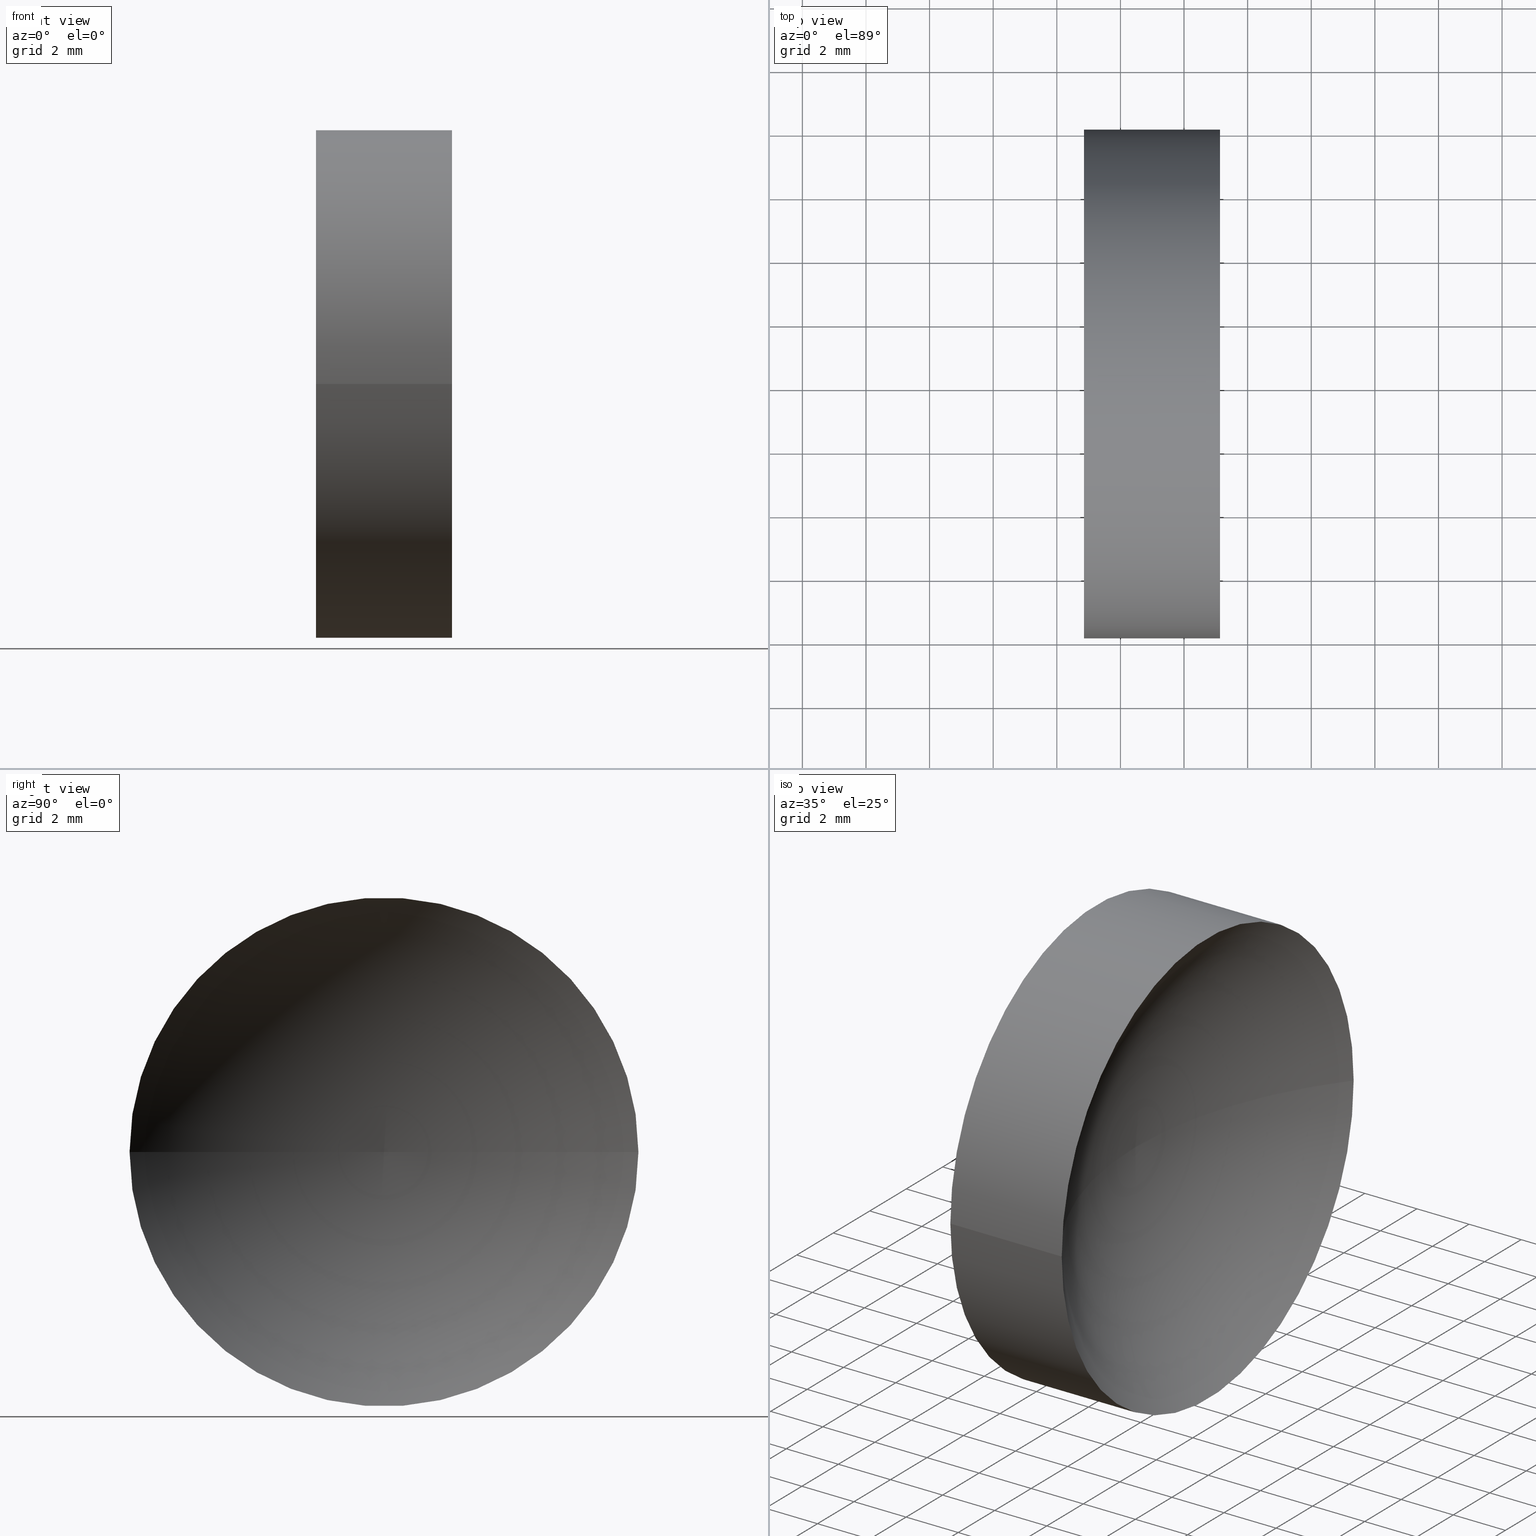
[diagram: canonical four-view strip — front | top / right | iso, engineering-drawing reading convention]
A machine part, canonical four-view strip (front | top / right | iso — engineering-drawing reading convention). The complete STEP part file that produces these views, byte-faithful:
ISO-10303-21;
HEADER;
FILE_DESCRIPTION (( 'STEP AP214' ),
    '1' );
FILE_NAME ('120140.STEP',
    '2019-06-19T08:49:53',
    ( '' ),
    ( '' ),
    'SwSTEP 2.0',
    'SolidWorks 2016',
    '' );
FILE_SCHEMA (( 'AUTOMOTIVE_DESIGN' ));
ENDSEC;

DATA;
#1 = VERTEX_POINT ( 'NONE', #114 ) ;
#2 = PRESENTATION_STYLE_ASSIGNMENT (( #96 ) ) ;
#3 = AXIS2_PLACEMENT_3D ( 'NONE', #123, #49, #75 ) ;
#4 = FILL_AREA_STYLE_COLOUR ( '', #58 ) ;
#5 = DIRECTION ( 'NONE',  ( 0.0000000000000000000, -1.000000000000000000, 0.0000000000000000000 ) ) ;
#6 = ORIENTED_EDGE ( 'NONE', *, *, #50, .T. ) ;
#7 = EDGE_LOOP ( 'NONE', ( #63, #37 ) ) ;
#8 = DIRECTION ( 'NONE',  ( 0.0000000000000000000, -1.000000000000000000, 0.0000000000000000000 ) ) ;
#9 = DIRECTION ( 'NONE',  ( 1.000000000000000000, -4.058245434298766700E-016, 0.0000000000000000000 ) ) ;
#10 = PRESENTATION_LAYER_ASSIGNMENT (  '', '', ( #159 ) ) ;
#11 = ORIENTED_EDGE ( 'NONE', *, *, #42, .T. ) ;
#12 = VECTOR ( 'NONE', #161, 1000.000000000000000 ) ;
#13 = SURFACE_SIDE_STYLE ('',( #131 ) ) ;
#14 = VERTEX_POINT ( 'NONE', #141 ) ;
#15 = SURFACE_STYLE_USAGE ( .BOTH. , #13 ) ;
#16 =( LENGTH_UNIT ( ) NAMED_UNIT ( * ) SI_UNIT ( .MILLI., .METRE. ) );
#17 = DIRECTION ( 'NONE',  ( 0.0000000000000000000, 0.0000000000000000000, 1.000000000000000000 ) ) ;
#18 = MECHANICAL_DESIGN_GEOMETRIC_PRESENTATION_REPRESENTATION (  '', ( #159 ), #84 ) ;
#19 = COLOUR_RGB ( '',1.000000000000000000, 1.000000000000000000, 1.000000000000000000 ) ;
#20 = EDGE_CURVE ( 'NONE', #32, #73, #47, .T. ) ;
#21 = VERTEX_POINT ( 'NONE', #52 ) ;
#22 = LINE ( 'NONE', #102, #64 ) ;
#23 = EDGE_CURVE ( 'NONE', #1, #32, #98, .T. ) ;
#24 = EDGE_LOOP ( 'NONE', ( #139, #11, #6, #143 ) ) ;
#25 = UNCERTAINTY_MEASURE_WITH_UNIT (LENGTH_MEASURE( 1.000000000000000100E-005 ), #157, 'distance_accuracy_value', 'NONE');
#26 = AXIS2_PLACEMENT_3D ( 'NONE', #72, #17, #100 ) ;
#27 = ADVANCED_FACE ( 'NONE', ( #28 ), #92, .T. ) ;
#28 = FACE_OUTER_BOUND ( 'NONE', #24, .T. ) ;
#29 =( NAMED_UNIT ( * ) PLANE_ANGLE_UNIT ( ) SI_UNIT ( $, .RADIAN. ) );
#30 = CIRCLE ( 'NONE', #166, 8.000000000000000000 ) ;
#31 =( NAMED_UNIT ( * ) SI_UNIT ( $, .STERADIAN. ) SOLID_ANGLE_UNIT ( ) );
#32 = VERTEX_POINT ( 'NONE', #43 ) ;
#33 = EDGE_CURVE ( 'NONE', #1, #73, #35, .T. ) ;
#34 = PRODUCT ( '120140', '120140', '', ( #165 ) ) ;
#35 = CIRCLE ( 'NONE', #119, 12.91000000000000500 ) ;
#36 = MANIFOLD_SOLID_BREP ( '��ת1', #158 ) ;
#37 = ORIENTED_EDGE ( 'NONE', *, *, #79, .T. ) ;
#38 = DIRECTION ( 'NONE',  ( 4.058245434298766700E-016, 1.000000000000000000, 0.0000000000000000000 ) ) ;
#39 = PRODUCT_DEFINITION ( 'δ֪', '', #106, #67 ) ;
#40 = ORIENTED_EDGE ( 'NONE', *, *, #33, .F. ) ;
#41 = CIRCLE ( 'NONE', #136, 8.000000000000000000 ) ;
#42 = EDGE_CURVE ( 'NONE', #32, #1, #45, .T. ) ;
#43 = CARTESIAN_POINT ( 'NONE',  ( 49.13169841185359100, 34.06225218280607700, 9.797174393178821700E-016 ) ) ;
#44 = FILL_AREA_STYLE_COLOUR ( '', #19 ) ;
#45 = CIRCLE ( 'NONE', #125, 8.000000000000003600 ) ;
#46 = ADVANCED_FACE ( 'NONE', ( #128 ), #115, .F. ) ;
#47 = CIRCLE ( 'NONE', #3, 12.91000000000000200 ) ;
#48 = ADVANCED_BREP_SHAPE_REPRESENTATION ( '120140', ( #36, #26 ), #153 ) ;
#49 = DIRECTION ( 'NONE',  ( -4.969917281268344600E-032, -1.224646799147353200E-016, 1.000000000000000000 ) ) ;
#50 = EDGE_CURVE ( 'NONE', #1, #21, #22, .T. ) ;
#51 = DIRECTION ( 'NONE',  ( -4.058245434298766700E-016, -1.000000000000000000, 0.0000000000000000000 ) ) ;
#52 = CARTESIAN_POINT ( 'NONE',  ( 44.85442262622448300, 18.06225218280608400, 0.0000000000000000000 ) ) ;
#53 = AXIS2_PLACEMENT_3D ( 'NONE', #163, #9, #38 ) ;
#54 =( GEOMETRIC_REPRESENTATION_CONTEXT ( 3 ) GLOBAL_UNCERTAINTY_ASSIGNED_CONTEXT ( ( #57 ) ) GLOBAL_UNIT_ASSIGNED_CONTEXT ( ( #107, #29, #120 ) ) REPRESENTATION_CONTEXT ( 'NONE', 'WORKASPACE' ) );
#55 = CARTESIAN_POINT ( 'NONE',  ( 59.26444251883568600, 26.06197698197384900, 0.0000000000000000000 ) ) ;
#56 = PRESENTATION_LAYER_ASSIGNMENT (  '', '', ( #99 ) ) ;
#57 = UNCERTAINTY_MEASURE_WITH_UNIT (LENGTH_MEASURE( 1.000000000000000100E-005 ), #107, 'distance_accuracy_value', 'NONE');
#58 = COLOUR_RGB ( '',1.000000000000000000, 1.000000000000000000, 1.000000000000000000 ) ;
#59 = AXIS2_PLACEMENT_3D ( 'NONE', #140, #74, #85 ) ;
#60 = ORIENTED_EDGE ( 'NONE', *, *, #20, .F. ) ;
#61 = DIRECTION ( 'NONE',  ( -1.000000000000000000, 4.058245434298766700E-016, -0.0000000000000000000 ) ) ;
#62 = PRESENTATION_STYLE_ASSIGNMENT (( #15 ) ) ;
#63 = ORIENTED_EDGE ( 'NONE', *, *, #91, .T. ) ;
#64 = VECTOR ( 'NONE', #61, 1000.000000000000000 ) ;
#65 = DIRECTION ( 'NONE',  ( 0.0000000000000000000, -0.0000000000000000000, -1.000000000000000000 ) ) ;
#66 = SHAPE_DEFINITION_REPRESENTATION ( #90, #48 ) ;
#67 = PRODUCT_DEFINITION_CONTEXT ( 'detailed design', #164, 'design' ) ;
#68 = DIRECTION ( 'NONE',  ( -1.000000000000000000, 4.058245434298766700E-016, -0.0000000000000000000 ) ) ;
#69 = ORIENTED_EDGE ( 'NONE', *, *, #42, .F. ) ;
#70 =( NAMED_UNIT ( * ) SI_UNIT ( $, .STERADIAN. ) SOLID_ANGLE_UNIT ( ) );
#71 = AXIS2_PLACEMENT_3D ( 'NONE', #82, #68, #133 ) ;
#72 = CARTESIAN_POINT ( 'NONE',  ( 0.0000000000000000000, 0.0000000000000000000, 0.0000000000000000000 ) ) ;
#73 = VERTEX_POINT ( 'NONE', #150 ) ;
#74 = DIRECTION ( 'NONE',  ( -1.000000000000000000, 4.058245434298766700E-016, -0.0000000000000000000 ) ) ;
#75 = DIRECTION ( 'NONE',  ( 0.0000000000000000000, -1.000000000000000000, -1.224646799147353200E-016 ) ) ;
#76 = CARTESIAN_POINT ( 'NONE',  ( 59.26444251883568600, 26.06225218280607700, 0.0000000000000000000 ) ) ;
#77 = MECHANICAL_DESIGN_GEOMETRIC_PRESENTATION_REPRESENTATION (  '', ( #99 ), #54 ) ;
#78 = DIRECTION ( 'NONE',  ( -1.000000000000000000, 4.058245434298766700E-016, -0.0000000000000000000 ) ) ;
#79 = EDGE_CURVE ( 'NONE', #14, #21, #41, .T. ) ;
#80 = CARTESIAN_POINT ( 'NONE',  ( 59.26444251883568600, 26.06225218280607700, 0.0000000000000000000 ) ) ;
#81 = EDGE_LOOP ( 'NONE', ( #60, #147, #105 ) ) ;
#82 = CARTESIAN_POINT ( 'NONE',  ( 49.13169841185359100, 26.06225218280608000, 0.0000000000000000000 ) ) ;
#83 = ADVANCED_FACE ( 'NONE', ( #116 ), #138, .F. ) ;
#84 =( GEOMETRIC_REPRESENTATION_CONTEXT ( 3 ) GLOBAL_UNCERTAINTY_ASSIGNED_CONTEXT ( ( #162 ) ) GLOBAL_UNIT_ASSIGNED_CONTEXT ( ( #16, #137, #70 ) ) REPRESENTATION_CONTEXT ( 'NONE', 'WORKASPACE' ) );
#85 = DIRECTION ( 'NONE',  ( 0.0000000000000000000, -1.000000000000000000, 0.0000000000000000000 ) ) ;
#86 = CARTESIAN_POINT ( 'NONE',  ( 44.85442262622448300, 26.06225218280608400, 0.0000000000000000000 ) ) ;
#87 = DIRECTION ( 'NONE',  ( 0.0000000000000000000, -1.000000000000000000, 0.0000000000000000000 ) ) ;
#88 = TOROIDAL_SURFACE ( 'NONE', #144, 0.0002752008322264752000, 12.91000000000000200 ) ;
#89 = CARTESIAN_POINT ( 'NONE',  ( 49.13169841185359100, 26.06225218280608000, 0.0000000000000000000 ) ) ;
#90 = PRODUCT_DEFINITION_SHAPE ( 'NONE', 'NONE',  #39 ) ;
#91 = EDGE_CURVE ( 'NONE', #21, #14, #30, .T. ) ;
#92 = CYLINDRICAL_SURFACE ( 'NONE', #155, 8.000000000000000000 ) ;
#93 = DIRECTION ( 'NONE',  ( -1.000000000000000000, 4.058245434298766700E-016, -0.0000000000000000000 ) ) ;
#94 =( NAMED_UNIT ( * ) PLANE_ANGLE_UNIT ( ) SI_UNIT ( $, .RADIAN. ) );
#95 = ORIENTED_EDGE ( 'NONE', *, *, #50, .F. ) ;
#96 = SURFACE_STYLE_USAGE ( .BOTH. , #110 ) ;
#97 = CYLINDRICAL_SURFACE ( 'NONE', #59, 8.000000000000000000 ) ;
#98 = CIRCLE ( 'NONE', #71, 8.000000000000003600 ) ;
#99 = STYLED_ITEM ( 'NONE', ( #62 ), #36 ) ;
#100 = DIRECTION ( 'NONE',  ( 1.000000000000000000, 0.0000000000000000000, 0.0000000000000000000 ) ) ;
#101 = ORIENTED_EDGE ( 'NONE', *, *, #111, .T. ) ;
#102 = CARTESIAN_POINT ( 'NONE',  ( 43.01195023616492100, 18.06225218280608400, 0.0000000000000000000 ) ) ;
#103 = FACE_OUTER_BOUND ( 'NONE', #81, .T. ) ;
#104 = APPLICATION_PROTOCOL_DEFINITION ( 'draft international standard', 'automotive_design', 1998, #142 ) ;
#105 = ORIENTED_EDGE ( 'NONE', *, *, #33, .T. ) ;
#106 = PRODUCT_DEFINITION_FORMATION_WITH_SPECIFIED_SOURCE ( '�κ�', '', #34, .NOT_KNOWN. ) ;
#107 =( LENGTH_UNIT ( ) NAMED_UNIT ( * ) SI_UNIT ( .MILLI., .METRE. ) );
#108 = DIRECTION ( 'NONE',  ( -4.058245434298766700E-016, -1.000000000000000000, 0.0000000000000000000 ) ) ;
#109 = EDGE_LOOP ( 'NONE', ( #69, #118, #40 ) ) ;
#110 = SURFACE_SIDE_STYLE ('',( #129 ) ) ;
#111 = EDGE_CURVE ( 'NONE', #32, #14, #132, .T. ) ;
#112 = ORIENTED_EDGE ( 'NONE', *, *, #23, .T. ) ;
#113 = DIRECTION ( 'NONE',  ( -1.000000000000000000, 4.058245434298766700E-016, -0.0000000000000000000 ) ) ;
#114 = CARTESIAN_POINT ( 'NONE',  ( 49.13169841185359100, 18.06225218280608000, 0.0000000000000000000 ) ) ;
#115 = PLANE ( 'NONE',  #53 ) ;
#116 = FACE_OUTER_BOUND ( 'NONE', #109, .T. ) ;
#117 = AXIS2_PLACEMENT_3D ( 'NONE', #76, #124, #51 ) ;
#118 = ORIENTED_EDGE ( 'NONE', *, *, #20, .T. ) ;
#119 = AXIS2_PLACEMENT_3D ( 'NONE', #55, #65, #154 ) ;
#120 =( NAMED_UNIT ( * ) SI_UNIT ( $, .STERADIAN. ) SOLID_ANGLE_UNIT ( ) );
#121 = FILL_AREA_STYLE ('',( #44 ) ) ;
#122 = CARTESIAN_POINT ( 'NONE',  ( 44.85442262622448300, 26.06225218280608400, 0.0000000000000000000 ) ) ;
#123 = CARTESIAN_POINT ( 'NONE',  ( 59.26444251883568600, 26.06252738363830400, 3.370238183088406100E-020 ) ) ;
#124 = DIRECTION ( 'NONE',  ( -1.000000000000000000, 4.058245434298766700E-016, -0.0000000000000000000 ) ) ;
#125 = AXIS2_PLACEMENT_3D ( 'NONE', #89, #126, #127 ) ;
#126 = DIRECTION ( 'NONE',  ( -1.000000000000000000, 4.058245434298766700E-016, -0.0000000000000000000 ) ) ;
#127 = DIRECTION ( 'NONE',  ( 0.0000000000000000000, -1.000000000000000000, 0.0000000000000000000 ) ) ;
#128 = FACE_OUTER_BOUND ( 'NONE', #7, .T. ) ;
#129 = SURFACE_STYLE_FILL_AREA ( #121 ) ;
#130 = EDGE_LOOP ( 'NONE', ( #112, #101, #134, #95 ) ) ;
#131 = SURFACE_STYLE_FILL_AREA ( #135 ) ;
#132 = LINE ( 'NONE', #149, #12 ) ;
#133 = DIRECTION ( 'NONE',  ( 0.0000000000000000000, -1.000000000000000000, 0.0000000000000000000 ) ) ;
#134 = ORIENTED_EDGE ( 'NONE', *, *, #91, .F. ) ;
#135 = FILL_AREA_STYLE ('',( #4 ) ) ;
#136 = AXIS2_PLACEMENT_3D ( 'NONE', #86, #78, #8 ) ;
#137 =( NAMED_UNIT ( * ) PLANE_ANGLE_UNIT ( ) SI_UNIT ( $, .RADIAN. ) );
#138 = TOROIDAL_SURFACE ( 'NONE', #117, 0.0002752008322264752000, 12.91000000000000200 ) ;
#139 = ORIENTED_EDGE ( 'NONE', *, *, #111, .F. ) ;
#140 = CARTESIAN_POINT ( 'NONE',  ( 43.01195023616492100, 26.06225218280608400, 0.0000000000000000000 ) ) ;
#141 = CARTESIAN_POINT ( 'NONE',  ( 44.85442262622448300, 34.06225218280608400, 9.797174393178827600E-016 ) ) ;
#142 = APPLICATION_CONTEXT ( 'automotive_design' ) ;
#143 = ORIENTED_EDGE ( 'NONE', *, *, #79, .F. ) ;
#144 = AXIS2_PLACEMENT_3D ( 'NONE', #80, #93, #108 ) ;
#145 = FACE_OUTER_BOUND ( 'NONE', #130, .T. ) ;
#146 = CARTESIAN_POINT ( 'NONE',  ( 43.01195023616492100, 26.06225218280608400, 0.0000000000000000000 ) ) ;
#147 = ORIENTED_EDGE ( 'NONE', *, *, #23, .F. ) ;
#148 = ADVANCED_FACE ( 'NONE', ( #145 ), #97, .T. ) ;
#149 = CARTESIAN_POINT ( 'NONE',  ( 43.01195023616492100, 34.06225218280608400, 9.797174393178827600E-016 ) ) ;
#150 = CARTESIAN_POINT ( 'NONE',  ( 46.35444252176889500, 26.06225218280608400, 0.0000000000000000000 ) ) ;
#151 = PRODUCT_RELATED_PRODUCT_CATEGORY ( 'part', '', ( #34 ) ) ;
#152 = APPLICATION_PROTOCOL_DEFINITION ( 'draft international standard', 'automotive_design', 1998, #164 ) ;
#153 =( GEOMETRIC_REPRESENTATION_CONTEXT ( 3 ) GLOBAL_UNCERTAINTY_ASSIGNED_CONTEXT ( ( #25 ) ) GLOBAL_UNIT_ASSIGNED_CONTEXT ( ( #157, #94, #31 ) ) REPRESENTATION_CONTEXT ( 'NONE', 'WORKASPACE' ) );
#154 = DIRECTION ( 'NONE',  ( -1.000000000000000000, 0.0000000000000000000, 0.0000000000000000000 ) ) ;
#155 = AXIS2_PLACEMENT_3D ( 'NONE', #146, #156, #5 ) ;
#156 = DIRECTION ( 'NONE',  ( -1.000000000000000000, 4.058245434298766700E-016, -0.0000000000000000000 ) ) ;
#157 =( LENGTH_UNIT ( ) NAMED_UNIT ( * ) SI_UNIT ( .MILLI., .METRE. ) );
#158 = CLOSED_SHELL ( 'NONE', ( #148, #83, #160, #27, #46 ) ) ;
#159 = STYLED_ITEM ( 'NONE', ( #2 ), #48 ) ;
#160 = ADVANCED_FACE ( 'NONE', ( #103 ), #88, .F. ) ;
#161 = DIRECTION ( 'NONE',  ( -1.000000000000000000, 4.058245434298766700E-016, -0.0000000000000000000 ) ) ;
#162 = UNCERTAINTY_MEASURE_WITH_UNIT (LENGTH_MEASURE( 1.000000000000000100E-005 ), #16, 'distance_accuracy_value', 'NONE');
#163 = CARTESIAN_POINT ( 'NONE',  ( 44.85442262622448300, 26.06225218280608400, 0.0000000000000000000 ) ) ;
#164 = APPLICATION_CONTEXT ( 'automotive_design' ) ;
#165 = PRODUCT_CONTEXT ( 'NONE', #142, 'mechanical' ) ;
#166 = AXIS2_PLACEMENT_3D ( 'NONE', #122, #113, #87 ) ;
ENDSEC;
END-ISO-10303-21;
